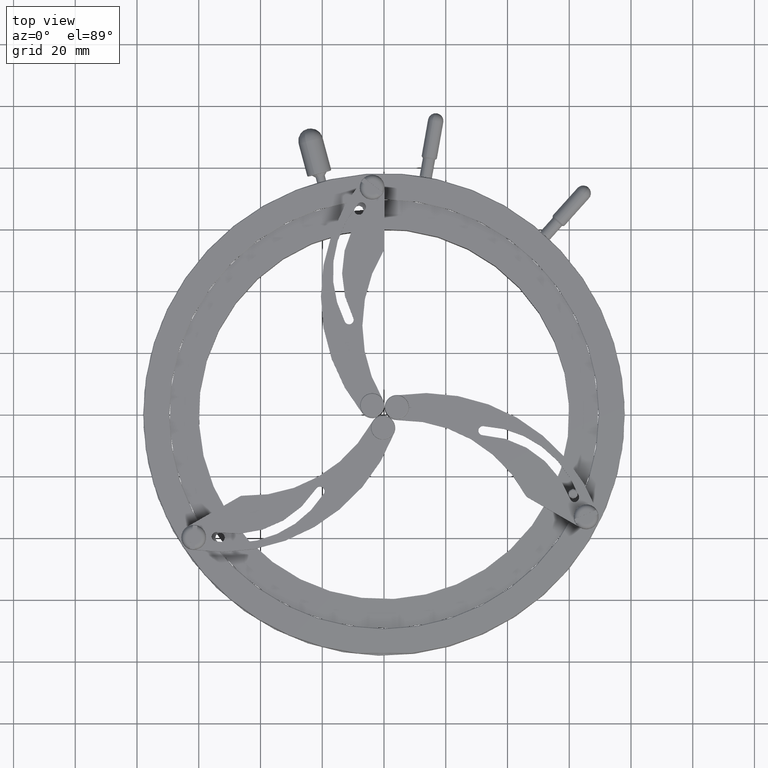
[diagram: clean part render]
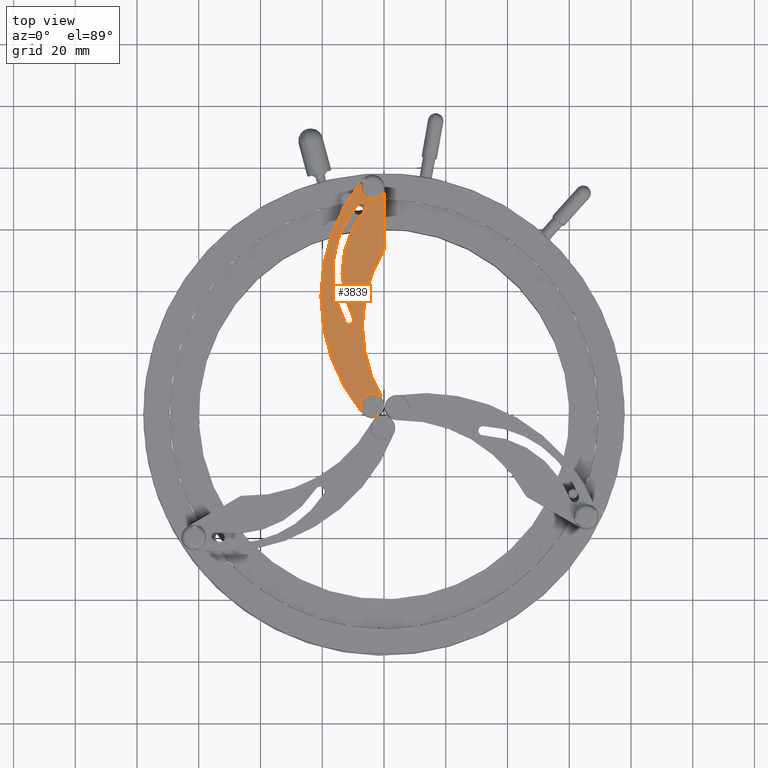
[diagram: same view with one face highlighted and labeled with its STEP entity id]
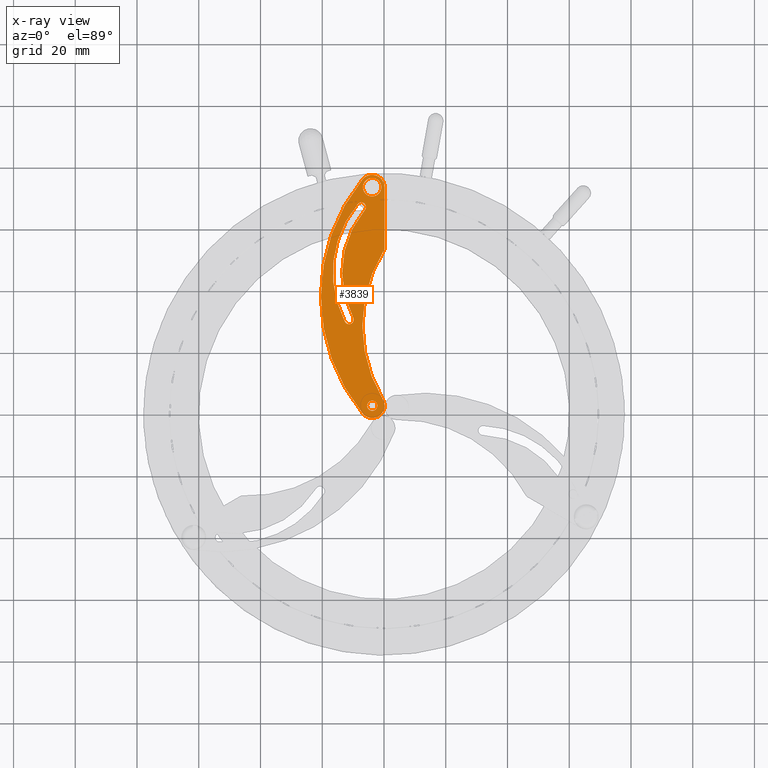
[diagram: x-ray of the same camera — body ghosted, the highlighted face saturated]
A machine part, top view. The second image highlights one B-rep face of the part: STEP entity #3839.
The next image is the same camera in x-ray: the body ghosted, the highlighted face saturated — about 0% of this face is hidden behind the body in this view.
In plain terms, the highlighted planar face has unit normal (-0, 0, -1).
Its self-contained STEP definition (entity closure, byte-faithful):
#240 = AXIS2_PLACEMENT_3D ( 'NONE', #7425, #9313, #11194 ) ;
#283 = EDGE_CURVE ( 'NONE', #1195, #8192, #693, .T. ) ;
#320 = DIRECTION ( 'NONE',  ( -0.9999999178578102832, -0.0004053200868201001835, 4.336808689942089720E-16 ) ) ;
#485 = ORIENTED_EDGE ( 'NONE', *, *, #12128, .T. ) ;
#493 = DIRECTION ( 'NONE',  ( 0.9999999178578101722, 0.0004053200868212571899, -2.312964634635784372E-16 ) ) ;
#527 = CARTESIAN_POINT ( 'NONE',  ( -6.947124858359854827, 75.92658577323416580, 12.00000000000003553 ) ) ;
#641 = ORIENTED_EDGE ( 'NONE', *, *, #2700, .F. ) ;
#693 = LINE ( 'NONE', #4694, #11647 ) ;
#936 = EDGE_LOOP ( 'NONE', ( #9480, #5577, #2360, #9424, #7227, #485, #9810 ) ) ;
#952 = VERTEX_POINT ( 'NONE', #11304 ) ;
#1077 = CARTESIAN_POINT ( 'NONE',  ( -20.44063881226262325, 37.99254203643067029, 11.99999999999995559 ) ) ;
#1094 = VERTEX_POINT ( 'NONE', #3044 ) ;
#1195 = VERTEX_POINT ( 'NONE', #11926 ) ;
#1233 = DIRECTION ( 'NONE',  ( 0.9999999178578101722, 0.0004053200868177875261, 0.000000000000000000 ) ) ;
#1448 = AXIS2_PLACEMENT_3D ( 'NONE', #4016, #9875, #11831 ) ;
#1649 = CARTESIAN_POINT ( 'NONE',  ( -6.916378434630867211, 0.06944914716446731751, 12.00000000000001599 ) ) ;
#1683 = AXIS2_PLACEMENT_3D ( 'NONE', #10769, #11731, #8700 ) ;
#1829 = AXIS2_PLACEMENT_3D ( 'NONE', #9439, #4774, #3767 ) ;
#1907 = ORIENTED_EDGE ( 'NONE', *, *, #9432, .F. ) ;
#2019 = FACE_BOUND ( 'NONE', #5599, .T. ) ;
#2124 = CARTESIAN_POINT ( 'NONE',  ( 17.92279197094806520, 45.77088287037246772, 12.00000000000002132 ) ) ;
#2226 = VERTEX_POINT ( 'NONE', #3881 ) ;
#2253 = DIRECTION ( 'NONE',  ( 0.9999999178578101722, 0.0004053200868201012135, 0.000000000000000000 ) ) ;
#2347 = CIRCLE ( 'NONE', #10757, 46.56698867246645790 ) ;
#2360 = ORIENTED_EDGE ( 'NONE', *, *, #8730, .T. ) ;
#2364 = CARTESIAN_POINT ( 'NONE',  ( -11.32930393606423181, 30.49623442771079240, 11.99999999999995204 ) ) ;
#2467 = CARTESIAN_POINT ( 'NONE',  ( -9.829304059277516714, 30.49684240784099032, 11.99999999999995204 ) ) ;
#2700 = EDGE_CURVE ( 'NONE', #5538, #952, #8579, .T. ) ;
#3000 = CIRCLE ( 'NONE', #4001, 1.499999999999971356 ) ;
#3044 = CARTESIAN_POINT ( 'NONE',  ( -2.167996257243214764, 2.599945398272748953, 11.99999999999994316 ) ) ;
#3204 = EDGE_CURVE ( 'NONE', #8192, #7171, #8684, .T. ) ;
#3213 = FACE_BOUND ( 'NONE', #4365, .T. ) ;
#3327 = DIRECTION ( 'NONE',  ( 0.9999999178578100612, 0.0004053200868211886683, -2.235132902638163430E-16 ) ) ;
#3426 = DIRECTION ( 'NONE',  ( 0.9999999178578101722, 0.0004053200868201012135, 0.000000000000000000 ) ) ;
#3453 = AXIS2_PLACEMENT_3D ( 'NONE', #3958, #5910, #10620 ) ;
#3520 = DIRECTION ( 'NONE',  ( -0.0004053200868212036845, 0.9999999178578101722, 2.293190566288117159E-16 ) ) ;
#3649 = CIRCLE ( 'NONE', #5664, 1.649999999999969269 ) ;
#3667 = VERTEX_POINT ( 'NONE', #10970 ) ;
#3767 = DIRECTION ( 'NONE',  ( 0.9999999178578102832, 0.0004053200868210997637, 0.000000000000000000 ) ) ;
#3790 = EDGE_CURVE ( 'NONE', #1094, #8055, #7279, .T. ) ;
#3825 = ORIENTED_EDGE ( 'NONE', *, *, #8123, .F. ) ;
#3839 = ADVANCED_FACE ( 'NONE', ( #7935, #3213, #2019, #7997 ), #5844, .F. ) ;
#3881 = CARTESIAN_POINT ( 'NONE',  ( -12.65894465911020283, 29.80193222577175050, 12.00000000000002665 ) ) ;
#3888 = EDGE_CURVE ( 'NONE', #11402, #3923, #5026, .T. ) ;
#3907 = DIRECTION ( 'NONE',  ( 0.9999999178578101722, 0.0004053200868212571899, -2.312964634635784372E-16 ) ) ;
#3923 = VERTEX_POINT ( 'NONE', #7003 ) ;
#3958 = CARTESIAN_POINT ( 'NONE',  ( -3.846692783855486297, 73.39927080446123853, 12.00000000000003553 ) ) ;
#3960 = AXIS2_PLACEMENT_3D ( 'NONE', #2124, #6091, #9922 ) ;
#4001 = AXIS2_PLACEMENT_3D ( 'NONE', #9926, #9119, #2253 ) ;
#4016 = CARTESIAN_POINT ( 'NONE',  ( -3.846692783855486297, 73.39927080446123853, 12.00000000000003553 ) ) ;
#4098 = EDGE_LOOP ( 'NONE', ( #4924, #9284 ) ) ;
#4284 = AXIS2_PLACEMENT_3D ( 'NONE', #11671, #11743, #1233 ) ;
#4365 = EDGE_LOOP ( 'NONE', ( #1907, #3825, #5496, #641, #10174, #11488 ) ) ;
#4624 = CARTESIAN_POINT ( 'NONE',  ( 39.56318046110664710, 28.58184503997506098, 12.00000000000001599 ) ) ;
#4694 = CARTESIAN_POINT ( 'NONE',  ( 0.1614132893121428269, 53.40089372765257991, 12.00000000000002665 ) ) ;
#4774 = DIRECTION ( 'NONE',  ( 2.315488395147580962E-16, -2.292252240979164541E-16, 1.000000000000000000 ) ) ;
#4788 = CARTESIAN_POINT ( 'NONE',  ( 39.55935625920599108, 38.01686124163994407, 11.99999999999994138 ) ) ;
#4924 = ORIENTED_EDGE ( 'NONE', *, *, #3790, .F. ) ;
#4993 = VERTEX_POINT ( 'NONE', #11837 ) ;
#5026 = CIRCLE ( 'NONE', #1448, 2.999999999999948042 ) ;
#5272 = CARTESIAN_POINT ( 'NONE',  ( 39.56318046110664710, 28.58184503997506098, 12.00000000000001599 ) ) ;
#5317 = CARTESIAN_POINT ( 'NONE',  ( -0.8466930302821075172, 73.40048676472170541, 12.00000000000003553 ) ) ;
#5381 = CARTESIAN_POINT ( 'NONE',  ( -3.817996121708570723, 2.599276620129494120, 11.99999999999994316 ) ) ;
#5496 = ORIENTED_EDGE ( 'NONE', *, *, #5873, .F. ) ;
#5538 = VERTEX_POINT ( 'NONE', #7693 ) ;
#5559 = AXIS2_PLACEMENT_3D ( 'NONE', #5381, #8223, #12044 ) ;
#5577 = ORIENTED_EDGE ( 'NONE', *, *, #7643, .T. ) ;
#5599 = EDGE_LOOP ( 'NONE', ( #6680, #5833 ) ) ;
#5662 = CIRCLE ( 'NONE', #6492, 1.499999999999971356 ) ;
#5664 = AXIS2_PLACEMENT_3D ( 'NONE', #7986, #6303, #6106 ) ;
#5806 = CARTESIAN_POINT ( 'NONE',  ( -5.467995986173926681, 2.598607841986239286, 11.99999999999994316 ) ) ;
#5833 = ORIENTED_EDGE ( 'NONE', *, *, #9169, .F. ) ;
#5844 = PLANE ( 'NONE',  #3453 ) ;
#5868 = CARTESIAN_POINT ( 'NONE',  ( 0.1533068875756229965, 73.40089208480839034, 11.99999999999995914 ) ) ;
#5873 = EDGE_CURVE ( 'NONE', #952, #6816, #9678, .T. ) ;
#5910 = DIRECTION ( 'NONE',  ( -2.315488395130109172E-16, 2.292252240979170951E-16, -1.000000000000000000 ) ) ;
#5911 = CARTESIAN_POINT ( 'NONE',  ( -3.846692783855486297, 73.39927080446123853, 12.00000000000003553 ) ) ;
#6031 = CARTESIAN_POINT ( 'NONE',  ( 17.92279197094806520, 45.77088287037246772, 12.00000000000002132 ) ) ;
#6091 = DIRECTION ( 'NONE',  ( -2.315488395147580962E-16, 2.292252240979164541E-16, -1.000000000000000000 ) ) ;
#6106 = DIRECTION ( 'NONE',  ( 0.9999999178578102832, 0.0004053200868210997637, 0.000000000000000000 ) ) ;
#6202 = DIRECTION ( 'NONE',  ( 2.315488395147580962E-16, -2.292252240979164541E-16, 1.000000000000000000 ) ) ;
#6303 = DIRECTION ( 'NONE',  ( 2.315488395147580962E-16, -2.292252240979164541E-16, 1.000000000000000000 ) ) ;
#6492 = AXIS2_PLACEMENT_3D ( 'NONE', #2364, #6202, #3426 ) ;
#6680 = ORIENTED_EDGE ( 'NONE', *, *, #3888, .F. ) ;
#6757 = CIRCLE ( 'NONE', #5559, 3.999999999999929834 ) ;
#6816 = VERTEX_POINT ( 'NONE', #8929 ) ;
#6885 = EDGE_CURVE ( 'NONE', #2226, #9623, #3000, .T. ) ;
#7003 = CARTESIAN_POINT ( 'NONE',  ( -6.846692537428864966, 73.39805484420077164, 12.00000000000003553 ) ) ;
#7107 = CIRCLE ( 'NONE', #7891, 34.49999999999938183 ) ;
#7139 = VERTEX_POINT ( 'NONE', #10209 ) ;
#7171 = VERTEX_POINT ( 'NONE', #527 ) ;
#7227 = ORIENTED_EDGE ( 'NONE', *, *, #10065, .T. ) ;
#7279 = CIRCLE ( 'NONE', #1829, 1.649999999999969269 ) ;
#7283 = EDGE_CURVE ( 'NONE', #8055, #1094, #3649, .T. ) ;
#7425 = CARTESIAN_POINT ( 'NONE',  ( -3.846692783855486297, 73.39927080446123853, 12.00000000000003553 ) ) ;
#7643 = EDGE_CURVE ( 'NONE', #7171, #10614, #11906, .T. ) ;
#7685 = AXIS2_PLACEMENT_3D ( 'NONE', #9235, #12174, #493 ) ;
#7693 = CARTESIAN_POINT ( 'NONE',  ( -9.999663213018394003, 31.19053662964993379, 12.00000000000002487 ) ) ;
#7891 = AXIS2_PLACEMENT_3D ( 'NONE', #6031, #10676, #9802 ) ;
#7935 = FACE_BOUND ( 'NONE', #4098, .T. ) ;
#7986 = CARTESIAN_POINT ( 'NONE',  ( -3.817996121708570723, 2.599276620129494120, 11.99999999999994316 ) ) ;
#7997 = FACE_OUTER_BOUND ( 'NONE', #936, .T. ) ;
#8055 = VERTEX_POINT ( 'NONE', #5806 ) ;
#8123 = EDGE_CURVE ( 'NONE', #6816, #3667, #11918, .T. ) ;
#8192 = VERTEX_POINT ( 'NONE', #5868 ) ;
#8223 = DIRECTION ( 'NONE',  ( 2.315488395147580962E-16, -2.292252240979164541E-16, 1.000000000000000000 ) ) ;
#8465 = DIRECTION ( 'NONE',  ( 0.9999999178578100612, 0.0004053200868211886683, -2.235132902638163430E-16 ) ) ;
#8579 = CIRCLE ( 'NONE', #3960, 31.49999999999943512 ) ;
#8628 = DIRECTION ( 'NONE',  ( 2.315488395147580962E-16, -2.292252240979164541E-16, 1.000000000000000000 ) ) ;
#8684 = CIRCLE ( 'NONE', #11713, 3.999999999999933831 ) ;
#8700 = DIRECTION ( 'NONE',  ( 0.9999999178578101722, 0.0004053200868177875261, 0.000000000000000000 ) ) ;
#8730 = EDGE_CURVE ( 'NONE', #10614, #11726, #11679, .T. ) ;
#8904 = EDGE_CURVE ( 'NONE', #9623, #5538, #5662, .T. ) ;
#8929 = CARTESIAN_POINT ( 'NONE',  ( -5.844098571015399202, 66.99846068999730164, 11.99999999999995914 ) ) ;
#9119 = DIRECTION ( 'NONE',  ( 2.315488395147580962E-16, -2.292252240979164541E-16, 1.000000000000000000 ) ) ;
#9169 = EDGE_CURVE ( 'NONE', #3923, #11402, #11905, .T. ) ;
#9235 = CARTESIAN_POINT ( 'NONE',  ( 39.55935625920599108, 38.01686124163994407, 11.99999999999994138 ) ) ;
#9284 = ORIENTED_EDGE ( 'NONE', *, *, #7283, .F. ) ;
#9313 = DIRECTION ( 'NONE',  ( 2.315488395147580962E-16, -2.292252240979164541E-16, 1.000000000000000000 ) ) ;
#9424 = ORIENTED_EDGE ( 'NONE', *, *, #11426, .T. ) ;
#9432 = EDGE_CURVE ( 'NONE', #3667, #2226, #7107, .T. ) ;
#9439 = CARTESIAN_POINT ( 'NONE',  ( -3.817996121708570723, 2.599276620129494120, 11.99999999999994316 ) ) ;
#9465 = AXIS2_PLACEMENT_3D ( 'NONE', #4788, #8628, #3907 ) ;
#9480 = ORIENTED_EDGE ( 'NONE', *, *, #3204, .T. ) ;
#9623 = VERTEX_POINT ( 'NONE', #2467 ) ;
#9678 = CIRCLE ( 'NONE', #4284, 1.499999999999974021 ) ;
#9802 = DIRECTION ( 'NONE',  ( 0.9999999178578101722, 0.0004053200868212069371, -2.514091994169330582E-16 ) ) ;
#9810 = ORIENTED_EDGE ( 'NONE', *, *, #283, .T. ) ;
#9815 = DIRECTION ( 'NONE',  ( 2.315488395147580962E-16, -2.292252240979164541E-16, 1.000000000000000000 ) ) ;
#9875 = DIRECTION ( 'NONE',  ( 2.315488395147580962E-16, -2.292252240979164541E-16, 1.000000000000000000 ) ) ;
#9922 = DIRECTION ( 'NONE',  ( 0.9999999178578102832, 0.0004053200868213122673, -2.202823461557889784E-16 ) ) ;
#9926 = CARTESIAN_POINT ( 'NONE',  ( -11.32930393606423181, 30.49623442771079240, 11.99999999999995204 ) ) ;
#10000 = CIRCLE ( 'NONE', #11210, 46.56698867246645790 ) ;
#10065 = EDGE_CURVE ( 'NONE', #7139, #4993, #2347, .T. ) ;
#10174 = ORIENTED_EDGE ( 'NONE', *, *, #8904, .F. ) ;
#10209 = CARTESIAN_POINT ( 'NONE',  ( -0.3864153436793221763, 4.654575470384579639, 11.99999999999994493 ) ) ;
#10614 = VERTEX_POINT ( 'NONE', #1077 ) ;
#10620 = DIRECTION ( 'NONE',  ( -0.9999999178578102832, -0.0004053200868212037387, 2.314559109053492981E-16 ) ) ;
#10676 = DIRECTION ( 'NONE',  ( 2.315488395147580962E-16, -2.292252240979164541E-16, 1.000000000000000000 ) ) ;
#10757 = AXIS2_PLACEMENT_3D ( 'NONE', #4624, #11180, #8465 ) ;
#10769 = CARTESIAN_POINT ( 'NONE',  ( -7.344098447802115182, 66.99785270986710373, 11.99999999999995914 ) ) ;
#10970 = CARTESIAN_POINT ( 'NONE',  ( -8.492593466836256155, 67.96271497529902206, 12.00000000000003553 ) ) ;
#11064 = DIRECTION ( 'NONE',  ( -2.315488395147580962E-16, 2.292252240979164541E-16, -1.000000000000000000 ) ) ;
#11180 = DIRECTION ( 'NONE',  ( -2.315488395147580962E-16, 2.292252240979164541E-16, -1.000000000000000000 ) ) ;
#11194 = DIRECTION ( 'NONE',  ( 0.9999999178578101722, 0.0004053200868224134373, 0.000000000000000000 ) ) ;
#11210 = AXIS2_PLACEMENT_3D ( 'NONE', #5272, #11064, #3327 ) ;
#11304 = CARTESIAN_POINT ( 'NONE',  ( -6.195603428767973320, 66.03299044443618016, 11.99999999999995914 ) ) ;
#11402 = VERTEX_POINT ( 'NONE', #5317 ) ;
#11426 = EDGE_CURVE ( 'NONE', #11726, #7139, #6757, .T. ) ;
#11488 = ORIENTED_EDGE ( 'NONE', *, *, #6885, .F. ) ;
#11647 = VECTOR ( 'NONE', #3520, 1000.000000000000114 ) ;
#11671 = CARTESIAN_POINT ( 'NONE',  ( -7.344098447802115182, 66.99785270986710373, 11.99999999999995914 ) ) ;
#11679 = CIRCLE ( 'NONE', #9465, 59.99999999999892708 ) ;
#11713 = AXIS2_PLACEMENT_3D ( 'NONE', #5911, #9815, #320 ) ;
#11726 = VERTEX_POINT ( 'NONE', #1649 ) ;
#11731 = DIRECTION ( 'NONE',  ( 2.315488395147580962E-16, -2.292252240979164541E-16, 1.000000000000000000 ) ) ;
#11743 = DIRECTION ( 'NONE',  ( 2.315488395147580962E-16, -2.292252240979164541E-16, 1.000000000000000000 ) ) ;
#11831 = DIRECTION ( 'NONE',  ( 0.9999999178578101722, 0.0004053200868224134373, 0.000000000000000000 ) ) ;
#11837 = CARTESIAN_POINT ( 'NONE',  ( -7.003804386246232028, 28.56297050408333504, 12.00000000000002665 ) ) ;
#11905 = CIRCLE ( 'NONE', #240, 2.999999999999948042 ) ;
#11906 = CIRCLE ( 'NONE', #7685, 59.99999999999892708 ) ;
#11918 = CIRCLE ( 'NONE', #1683, 1.499999999999974021 ) ;
#11926 = CARTESIAN_POINT ( 'NONE',  ( 0.1614132893121428269, 53.40089372765257991, 12.00000000000002665 ) ) ;
#12044 = DIRECTION ( 'NONE',  ( 0.9999999178578102832, 0.0004053200868211847652, -4.336808689942093664E-16 ) ) ;
#12128 = EDGE_CURVE ( 'NONE', #4993, #1195, #10000, .T. ) ;
#12174 = DIRECTION ( 'NONE',  ( 2.315488395147580962E-16, -2.292252240979164541E-16, 1.000000000000000000 ) ) ;